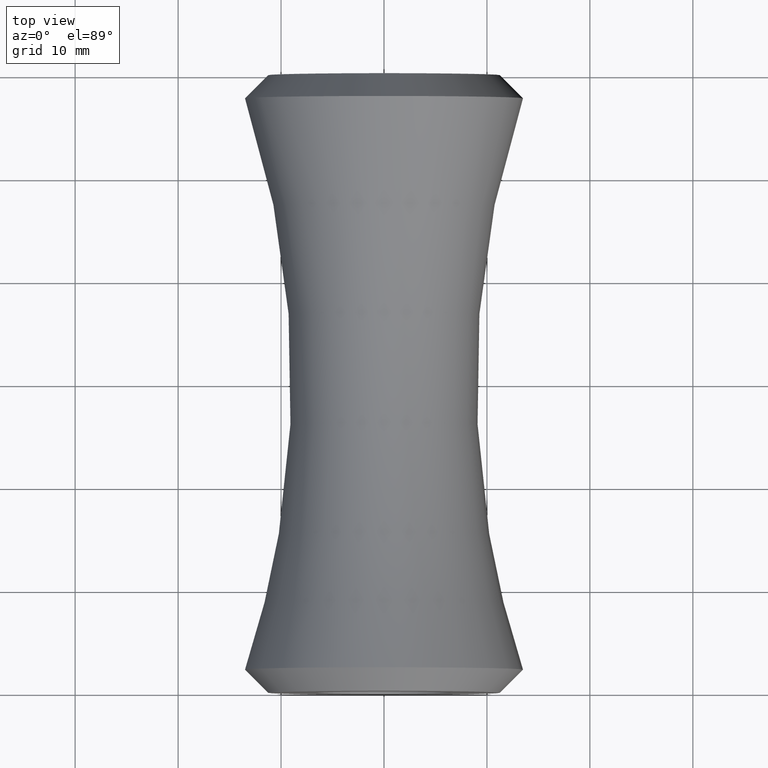
[diagram: clean part render]
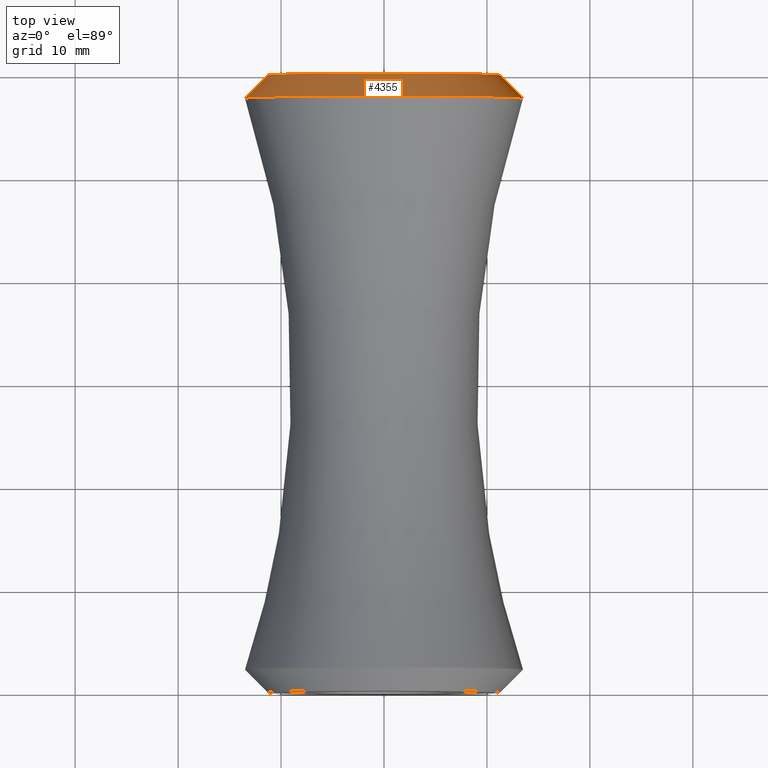
[diagram: same view with one face highlighted and labeled with its STEP entity id]
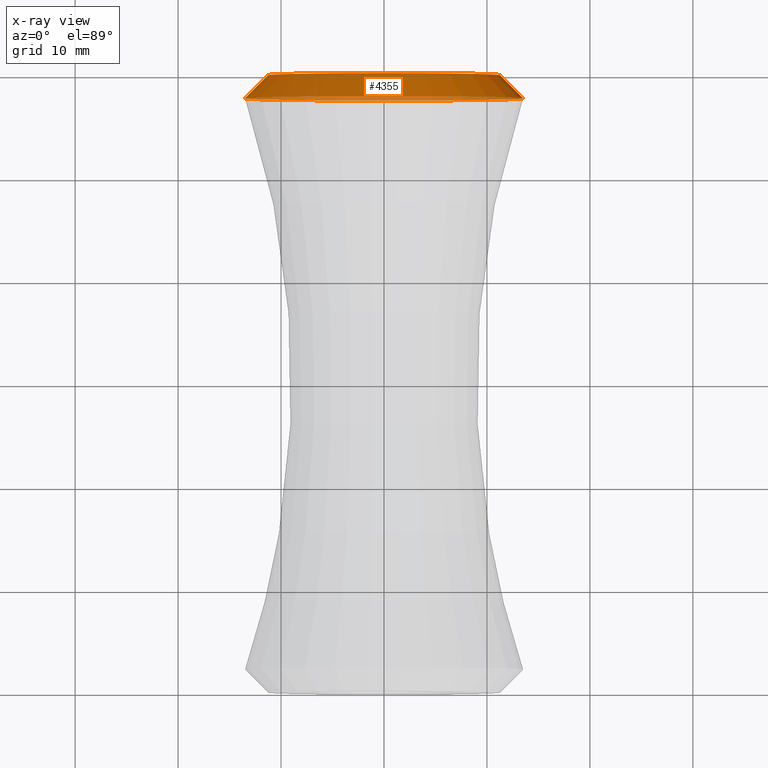
[diagram: x-ray of the same camera — body ghosted, the highlighted face saturated]
A machine part, top view. The second image highlights one B-rep face of the part: STEP entity #4355.
The next image is the same camera in x-ray: the body ghosted, the highlighted face saturated — about 15% of this face is hidden behind the body in this view.
In plain terms, the highlighted conical surface has half-angle 45 deg.
Its self-contained STEP definition (entity closure, byte-faithful):
#147 = ORIENTED_EDGE ( 'NONE', *, *, #10608, .F. ) ;
#485 = EDGE_CURVE ( 'NONE', #2297, #2297, #1258, .T. ) ;
#994 = CARTESIAN_POINT ( 'NONE',  ( -11.25000000000002309, 29.99999999999999289, 0.000000000000000000 ) ) ;
#1258 = CIRCLE ( 'NONE', #8182, 13.50000000000000888 ) ;
#2297 = VERTEX_POINT ( 'NONE', #10545 ) ;
#2381 = ORIENTED_EDGE ( 'NONE', *, *, #485, .T. ) ;
#3078 = DIRECTION ( 'NONE',  ( 3.061616997868382648E-16, -1.000000000000000000, 0.000000000000000000 ) ) ;
#3727 = DIRECTION ( 'NONE',  ( -3.061616997868382648E-16, 1.000000000000000000, -0.000000000000000000 ) ) ;
#4005 = FACE_OUTER_BOUND ( 'NONE', #5919, .T. ) ;
#4261 = DIRECTION ( 'NONE',  ( -3.061616997868382648E-16, 1.000000000000000000, -0.000000000000000000 ) ) ;
#4355 = ADVANCED_FACE ( 'NONE', ( #4005, #6097 ), #7411, .T. ) ;
#5919 = EDGE_LOOP ( 'NONE', ( #2381 ) ) ;
#6097 = FACE_BOUND ( 'NONE', #9613, .T. ) ;
#6811 = CARTESIAN_POINT ( 'NONE',  ( -9.176122424553198706E-15, 29.99999999999999645, 0.000000000000000000 ) ) ;
#7411 = CONICAL_SURFACE ( 'NONE', #11689, 11.25000000000001599, 0.7853981633974563836 ) ;
#7509 = CARTESIAN_POINT ( 'NONE',  ( -8.487258600032826119E-15, 27.75000000000003908, 0.000000000000000000 ) ) ;
#8182 = AXIS2_PLACEMENT_3D ( 'NONE', #7509, #3727, #10373 ) ;
#8797 = VERTEX_POINT ( 'NONE', #994 ) ;
#8968 = AXIS2_PLACEMENT_3D ( 'NONE', #9941, #4261, #11078 ) ;
#9613 = EDGE_LOOP ( 'NONE', ( #147 ) ) ;
#9941 = CARTESIAN_POINT ( 'NONE',  ( -9.176122424553198706E-15, 29.99999999999999645, 0.000000000000000000 ) ) ;
#10373 = DIRECTION ( 'NONE',  ( -1.000000000000000000, -2.569960705150823426E-16, 0.000000000000000000 ) ) ;
#10545 = CARTESIAN_POINT ( 'NONE',  ( -13.50000000000001776, 27.75000000000003553, 0.000000000000000000 ) ) ;
#10608 = EDGE_CURVE ( 'NONE', #8797, #8797, #10749, .T. ) ;
#10749 = CIRCLE ( 'NONE', #8968, 11.25000000000001599 ) ;
#11078 = DIRECTION ( 'NONE',  ( -1.000000000000000000, -3.083952846180985843E-16, 0.000000000000000000 ) ) ;
#11456 = DIRECTION ( 'NONE',  ( 1.000000000000000000, 3.083952846180985843E-16, 0.000000000000000000 ) ) ;
#11689 = AXIS2_PLACEMENT_3D ( 'NONE', #6811, #3078, #11456 ) ;